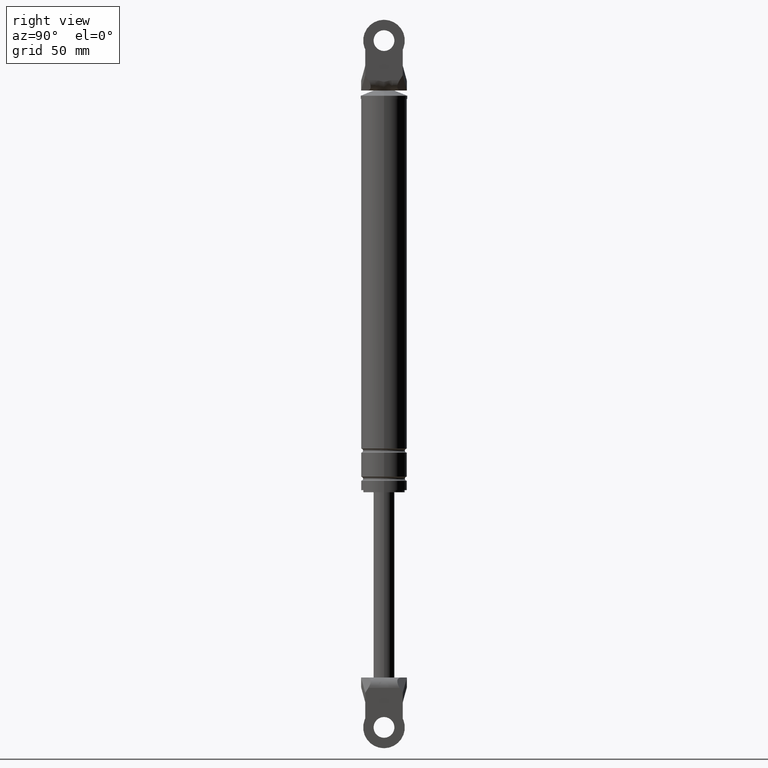
[diagram: clean part render]
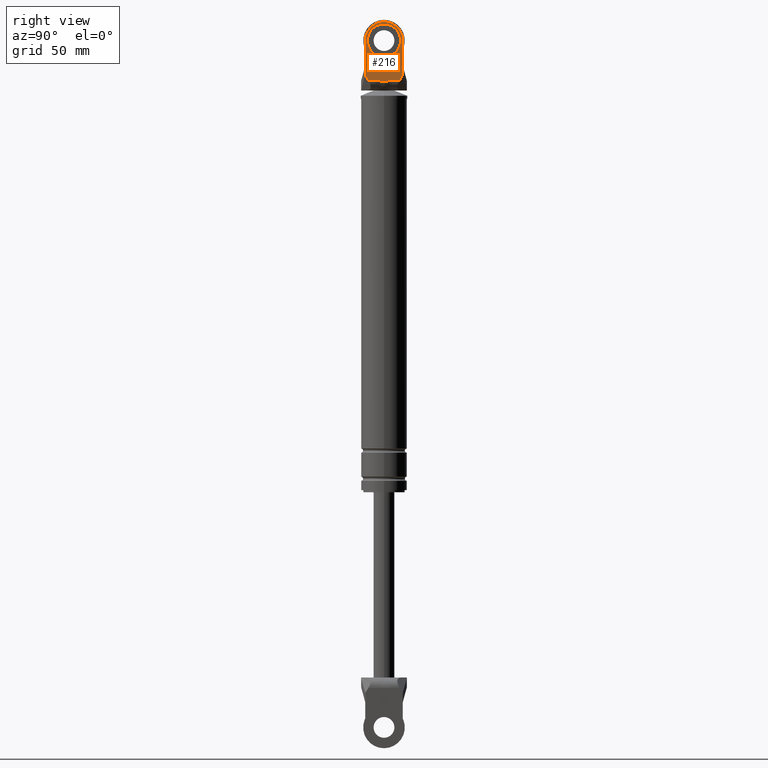
[diagram: same view with one face highlighted and labeled with its STEP entity id]
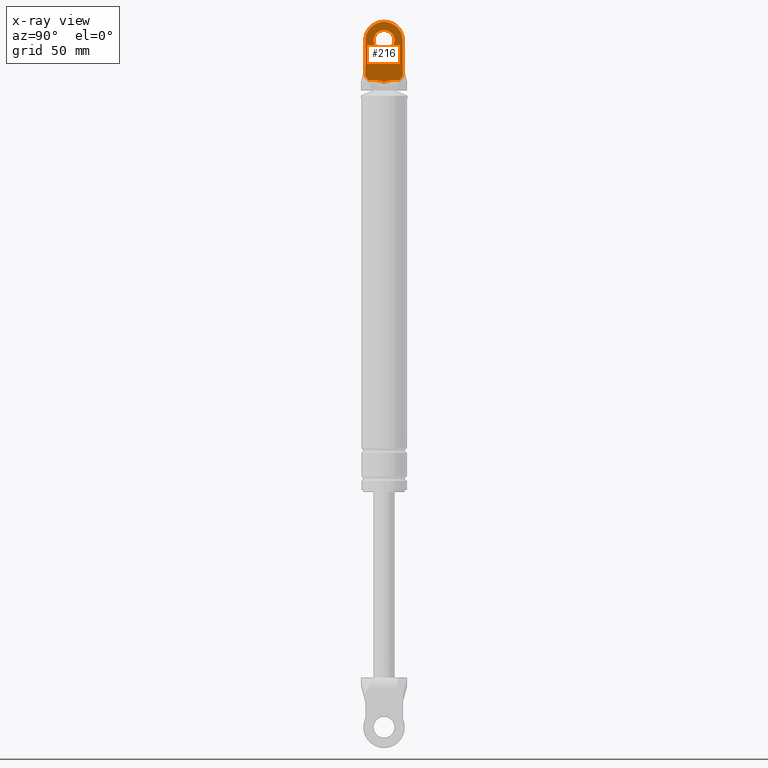
[diagram: x-ray of the same camera — body ghosted, the highlighted face saturated]
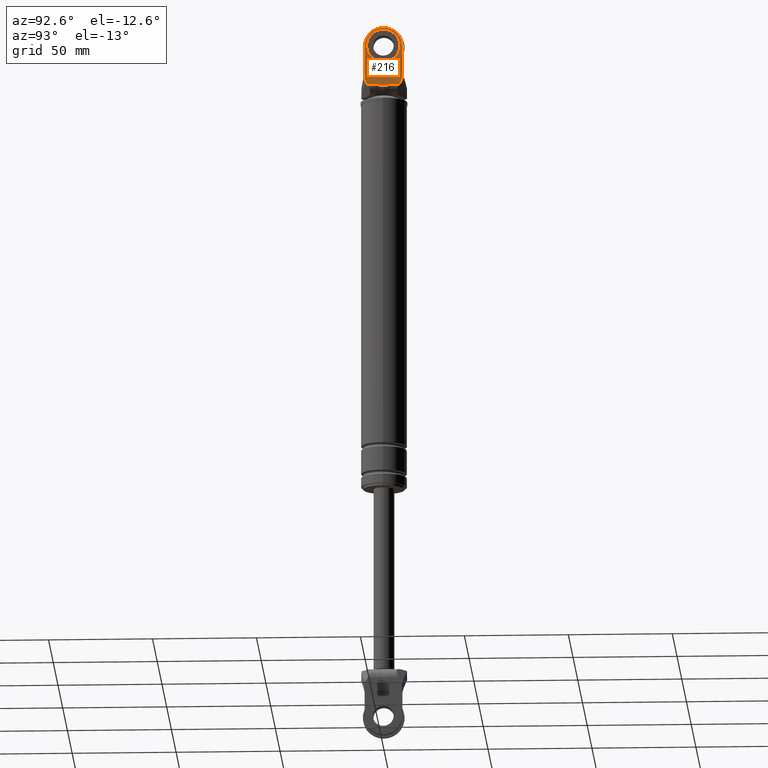
[diagram: same view with one face highlighted and labeled with its STEP entity id]
A machine part, right view. The second image highlights one B-rep face of the part: STEP entity #216.
The next image is the same camera in x-ray: the body ghosted, the highlighted face saturated — about 0% of this face is hidden behind the body in this view.
A second angle (auxiliary view) of the same face is appended — the face is thin or edge-on in the first view.
In plain terms, the highlighted planar face has unit normal (1, 0, 0).
Its self-contained STEP definition (entity closure, byte-faithful):
#216=ADVANCED_FACE('',(#411,#412),#410,.T.);
#410=PLANE('',#1183);
#411=FACE_OUTER_BOUND('',#1184,.T.);
#412=FACE_BOUND('',#1185,.T.);
#1180=CARTESIAN_POINT('',(7.00000000000E+000,1.08000000785E+001,9.03623767282E+001));
#1181=DIRECTION('',(1.00000000000E+000,0.00000000000E+000,-0.00000000000E+000));
#1182=DIRECTION('',(0.00000000000E+000,1.22460635382E-016,1.00000000000E+000));
#1183=AXIS2_PLACEMENT_3D('',#1180,#1181,#1182);
#1184=EDGE_LOOP('',(#1810,#1811,#1812,#1813,#1814,#1815,#1816,#1817,#1818,#1819));
#1185=EDGE_LOOP('',(#1820,#1821));
#1810=ORIENTED_EDGE('',*,*,#2182,.T.);
#1811=ORIENTED_EDGE('',*,*,#2183,.T.);
#1812=ORIENTED_EDGE('',*,*,#2184,.T.);
#1813=ORIENTED_EDGE('',*,*,#2185,.T.);
#1814=ORIENTED_EDGE('',*,*,#2186,.T.);
#1815=ORIENTED_EDGE('',*,*,#2187,.F.);
#1816=ORIENTED_EDGE('',*,*,#2188,.T.);
#1817=ORIENTED_EDGE('',*,*,#2189,.F.);
#1818=ORIENTED_EDGE('',*,*,#2190,.T.);
#1819=ORIENTED_EDGE('',*,*,#2191,.T.);
#1820=ORIENTED_EDGE('',*,*,#2192,.T.);
#1821=ORIENTED_EDGE('',*,*,#2193,.T.);
#2182=EDGE_CURVE('',#2516,#2517,#2518,.T.);
#2183=EDGE_CURVE('',#2517,#2524,#2525,.T.);
#2184=EDGE_CURVE('',#2524,#2531,#2532,.T.);
#2185=EDGE_CURVE('',#2531,#2538,#2539,.T.);
#2186=EDGE_CURVE('',#2538,#2545,#2546,.T.);
#2187=EDGE_CURVE('',#2552,#2545,#2553,.T.);
#2188=EDGE_CURVE('',#2552,#2559,#2560,.T.);
#2189=EDGE_CURVE('',#2566,#2559,#2567,.T.);
#2190=EDGE_CURVE('',#2566,#2573,#2574,.T.);
#2191=EDGE_CURVE('',#2573,#2516,#2580,.T.);
#2192=EDGE_CURVE('',#2586,#2587,#2588,.T.);
#2193=EDGE_CURVE('',#2587,#2586,#2594,.T.);
#2516=VERTEX_POINT('',#3766);
#2517=VERTEX_POINT('',#3767);
#2518=LINE('',#3768,#3769);
#2524=VERTEX_POINT('',#3771);
#2525=LINE('',#3772,#3773);
#2531=VERTEX_POINT('',#3775);
#2532=(BOUNDED_CURVE() B_SPLINE_CURVE(3,(#3776,#3777,#3778,#3779,#3780,#3781,#3782,#3783,#3784,#3785,#3786,#3787,#3788,#3789,#3790,#3791,#3792,#3793),.UNSPECIFIED.,.F.,.F.) B_SPLINE_CURVE_WITH_KNOTS((4,2,2,2,2,2,2,2,4),(0.00000000000E+000,1.06854947845E-003,2.13709895690E-003,3.20564843535E-003,4.27419791380E-003,5.34274739225E-003,6.41129687069E-003,7.47984634914E-003,8.54839582759E-003),.UNSPECIFIED.) CURVE() GEOMETRIC_REPRESENTATION_ITEM() RATIONAL_B_SPLINE_CURVE((1.00000000000E+000,1.00000000000E+000,1.00000000000E+000,1.00000000000E+000,1.00000000000E+000,1.00000000000E+000,1.00000000000E+000,1.00000000000E+000,1.00000000000E+000,1.00000000000E+000,1.00000000000E+000,1.00000000000E+000,1.00000000000E+000,1.00000000000E+000,1.00000000000E+000,1.00000000000E+000,1.00000000000E+000,1.00000000000E+000)) REPRESENTATION_ITEM('') );
#2538=VERTEX_POINT('',#3794);
#2539=LINE('',#3795,#3796);
#2545=VERTEX_POINT('',#3798);
#2546=LINE('',#3799,#3800);
#2552=VERTEX_POINT('',#3802);
#2553=LINE('',#3803,#3804);
#2559=VERTEX_POINT('',#3806);
#2560=LINE('',#3807,#3808);
#2566=VERTEX_POINT('',#3810);
#2567=CIRCLE('',#3814,9.00000000000E+000);
#2573=VERTEX_POINT('',#3815);
#2574=LINE('',#3816,#3817);
#2580=LINE('',#3819,#3820);
#2586=VERTEX_POINT('',#3822);
#2587=VERTEX_POINT('',#3823);
#2588=CIRCLE('',#3827,5.00000000000E+000);
#2594=CIRCLE('',#3831,5.00000000000E+000);
#3766=CARTESIAN_POINT('',(7.00000000000E+000,-9.00000000000E+000,9.63794956183E+001));
#3767=CARTESIAN_POINT('',(7.00000000000E+000,-7.51280740496E+000,9.39999850000E+001));
#3768=CARTESIAN_POINT('',(7.00000000000E+000,-9.00000000000E+000,9.63794956183E+001));
#3769=VECTOR('',#3770,2.80603146760E+000);
#3770=DIRECTION('',(0.00000000000E+000,5.29998544994E-001,-8.47998550886E-001));
#3771=CARTESIAN_POINT('',(7.00000000000E+000,-4.19794107278E+000,9.39999850000E+001));
#3772=CARTESIAN_POINT('',(7.00000000000E+000,-7.51280740496E+000,9.39999850000E+001));
#3773=VECTOR('',#3774,3.31486633219E+000);
#3774=DIRECTION('',(0.00000000000E+000,1.00000000000E+000,0.00000000000E+000));
#3775=CARTESIAN_POINT('',(7.00000000000E+000,4.19794107278E+000,9.39999850000E+001));
#3776=CARTESIAN_POINT('',(7.00000000000E+000,-4.19794107278E+000,9.39999850000E+001));
#3777=CARTESIAN_POINT('',(7.00000000000E+000,-3.83668867664E+000,9.39999850000E+001));
#3778=CARTESIAN_POINT('',(7.00000000000E+000,-3.48084742448E+000,9.39680255174E+001));
#3779=CARTESIAN_POINT('',(7.00000000000E+000,-2.77747191810E+000,9.38550434783E+001));
#3780=CARTESIAN_POINT('',(7.00000000000E+000,-2.43004895945E+000,9.37733635842E+001));
#3781=CARTESIAN_POINT('',(7.00000000000E+000,-1.73930455721E+000,9.35857792882E+001));
#3782=CARTESIAN_POINT('',(7.00000000000E+000,-1.39633116709E+000,9.34788034011E+001));
#3783=CARTESIAN_POINT('',(7.00000000000E+000,-7.02882341013E-001,9.33033126541E+001));
#3784=CARTESIAN_POINT('',(7.00000000000E+000,-3.50170672612E-001,9.32385229705E+001));
#3785=CARTESIAN_POINT('',(7.00000000000E+000,3.75945783394E-001,9.32414472218E+001));
#3786=CARTESIAN_POINT('',(7.00000000000E+000,7.25000323177E-001,9.33080943097E+001));
#3787=CARTESIAN_POINT('',(7.00000000000E+000,1.41392909206E+000,9.34841213850E+001));
#3788=CARTESIAN_POINT('',(7.00000000000E+000,1.75451243077E+000,9.35902005791E+001));
#3789=CARTESIAN_POINT('',(7.00000000000E+000,2.44131589628E+000,9.37761206067E+001));
#3790=CARTESIAN_POINT('',(7.00000000000E+000,2.78721992144E+000,9.38569752041E+001));
#3791=CARTESIAN_POINT('',(7.00000000000E+000,3.48676651954E+000,9.39686020866E+001));
#3792=CARTESIAN_POINT('',(7.00000000000E+000,3.84186402612E+000,9.39999850000E+001));
#3793=CARTESIAN_POINT('',(7.00000000000E+000,4.19794107278E+000,9.39999850000E+001));
#3794=CARTESIAN_POINT('',(7.00000000000E+000,7.51280740496E+000,9.39999850000E+001));
#3795=CARTESIAN_POINT('',(7.00000000000E+000,4.19794107278E+000,9.39999850000E+001));
#3796=VECTOR('',#3797,3.31486633219E+000);
#3797=DIRECTION('',(0.00000000000E+000,1.00000000000E+000,0.00000000000E+000));
#3798=CARTESIAN_POINT('',(7.00000000000E+000,9.00000000000E+000,9.63794956183E+001));
#3799=CARTESIAN_POINT('',(7.00000000000E+000,7.51280740496E+000,9.39999850000E+001));
#3800=VECTOR('',#3801,2.80603146760E+000);
#3801=DIRECTION('',(0.00000000000E+000,5.29998544994E-001,8.47998550886E-001));
#3802=CARTESIAN_POINT('',(7.00000000000E+000,9.00000000000E+000,1.00999985000E+002));
#3803=CARTESIAN_POINT('',(7.00000000000E+000,9.00000000000E+000,1.00999985000E+002));
#3804=VECTOR('',#3805,4.62048938173E+000);
#3805=DIRECTION('',(0.00000000000E+000,0.00000000000E+000,-1.00000000000E+000));
#3806=CARTESIAN_POINT('',(7.00000000000E+000,9.00000000000E+000,1.12999985000E+002));
#3807=CARTESIAN_POINT('',(7.00000000000E+000,9.00000000000E+000,1.00999985000E+002));
#3808=VECTOR('',#3809,1.20000000000E+001);
#3809=DIRECTION('',(0.00000000000E+000,1.48029736617E-016,1.00000000000E+000));
#3810=CARTESIAN_POINT('',(7.00000000000E+000,-9.00000000000E+000,1.12999984215E+002));
#3811=CARTESIAN_POINT('',(7.00000000000E+000,1.50626581520E-014,1.12999985000E+002));
#3812=DIRECTION('',(-1.00000000000E+000,0.00000000000E+000,0.00000000000E+000));
#3813=DIRECTION('',(-0.00000000000E+000,-1.22460635382E-016,-1.00000000000E+000));
#3814=AXIS2_PLACEMENT_3D('',#3811,#3812,#3813);
#3815=CARTESIAN_POINT('',(7.00000000000E+000,-9.00000000000E+000,1.00999985000E+002));
#3816=CARTESIAN_POINT('',(7.00000000000E+000,-9.00000000000E+000,1.12999984215E+002));
#3817=VECTOR('',#3818,1.19999992146E+001);
#3818=DIRECTION('',(0.00000000000E+000,-1.48029746305E-016,-1.00000000000E+000));
#3819=CARTESIAN_POINT('',(7.00000000000E+000,-9.00000000000E+000,1.00999985000E+002));
#3820=VECTOR('',#3821,4.62048938173E+000);
#3821=DIRECTION('',(0.00000000000E+000,0.00000000000E+000,-1.00000000000E+000));
#3822=CARTESIAN_POINT('',(7.00000000000E+000,1.56749613289E-014,1.17999985000E+002));
#3823=CARTESIAN_POINT('',(7.00000000000E+000,1.48029736617E-014,1.07999985000E+002));
#3824=CARTESIAN_POINT('',(7.00000000000E+000,1.50626581520E-014,1.12999985000E+002));
#3825=DIRECTION('',(-1.00000000000E+000,0.00000000000E+000,0.00000000000E+000));
#3826=DIRECTION('',(0.00000000000E+000,-1.47911419729E-031,1.00000000000E+000));
#3827=AXIS2_PLACEMENT_3D('',#3824,#3825,#3826);
#3828=CARTESIAN_POINT('',(7.00000000000E+000,1.50626581520E-014,1.12999985000E+002));
#3829=DIRECTION('',(-1.00000000000E+000,0.00000000000E+000,0.00000000000E+000));
#3830=DIRECTION('',(0.00000000000E+000,-1.47911419729E-031,1.00000000000E+000));
#3831=AXIS2_PLACEMENT_3D('',#3828,#3829,#3830);